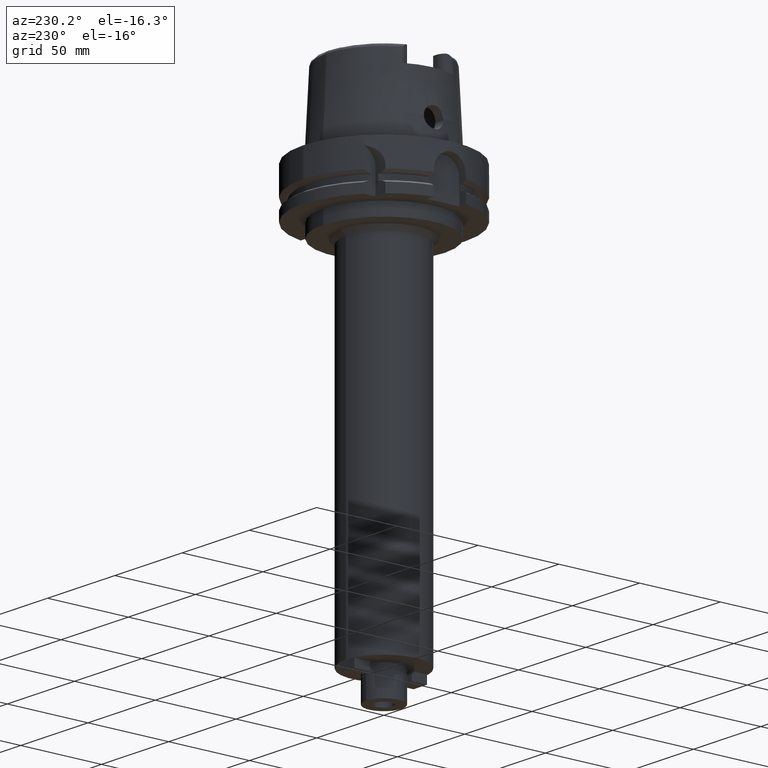
[diagram: clean part render]
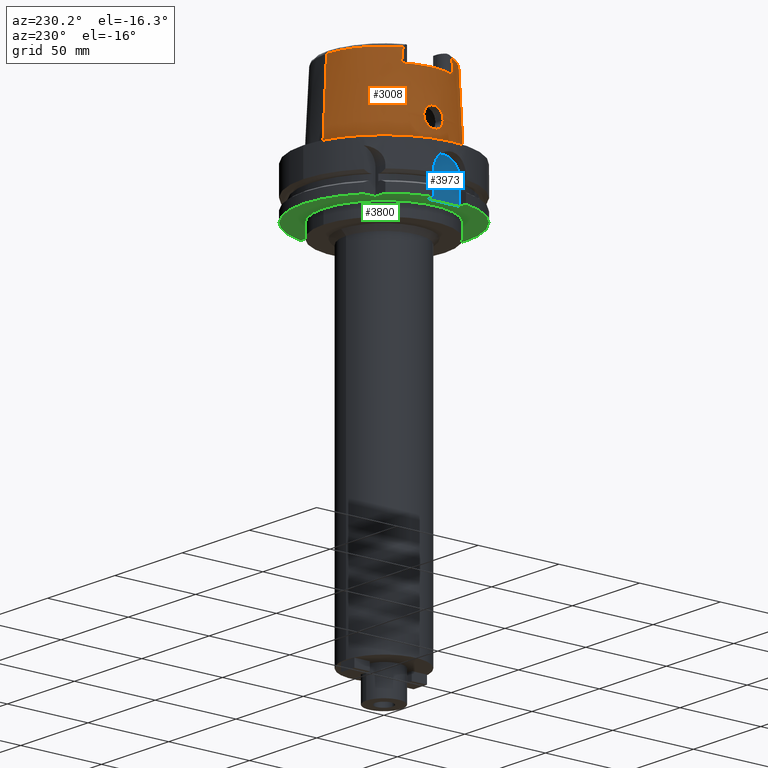
[diagram: same view with three faces highlighted in distinct colors, each labeled with its STEP entity id]
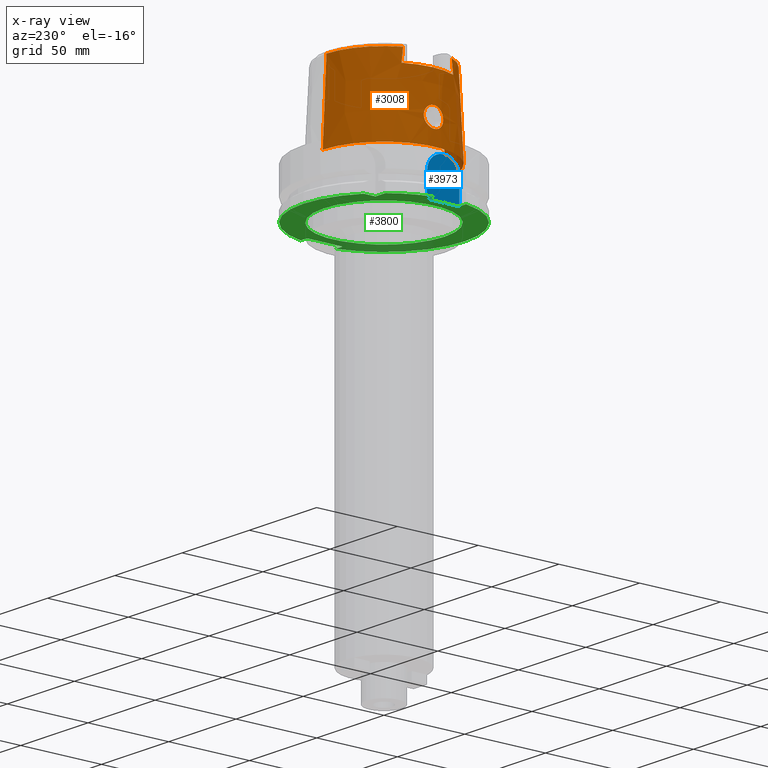
[diagram: x-ray of the same camera — body ghosted, the three highlighted faces saturated]
A machine part, auxiliary view with three faces highlighted in distinct colors.
The next image is the same camera in x-ray (body ghosted, the three faces saturated) — at least one of them is partly hidden behind the body in this view.
Their STEP definitions:

[orange] entity #3008 — the highlighted conical surface has half-angle 2.862 deg.
#130=CARTESIAN_POINT('',(0.E0,0.E0,4.E1));
#131=DIRECTION('',(0.E0,0.E0,-1.E0));
#132=DIRECTION('',(-8.958345712660E-1,-4.443876921391E-1,0.E0));
#133=AXIS2_PLACEMENT_3D('',#130,#131,#132);
#221=CARTESIAN_POINT('',(-3.224999491821E1,-1.506448477231E1,4.809973292968E1));
#279=CARTESIAN_POINT('',(0.E0,0.E0,4.809987853799E1));
#280=DIRECTION('',(0.E0,0.E0,-1.E0));
#281=DIRECTION('',(0.E0,-1.E0,0.E0));
#282=AXIS2_PLACEMENT_3D('',#279,#280,#281);
#287=CARTESIAN_POINT('',(-3.224999876012E1,-1.599794043148E1,4.E1));
#288=CARTESIAN_POINT('',(-3.224999876012E1,-1.589618560063E1,4.090434232027E1));
#289=CARTESIAN_POINT('',(-3.224999990104E1,-1.569149929716E1,4.271014755209E1));
#290=CARTESIAN_POINT('',(-3.225000220619E1,-1.538028253638E1,4.541006277038E1));
#291=CARTESIAN_POINT('',(-3.224999491821E1,-1.517027183279E1,4.720433955441E1));
#292=CARTESIAN_POINT('',(-3.224999491821E1,-1.506448477231E1,4.809973292968E1));
#297=DIRECTION('',(5.154182075151E-5,-4.993927430816E-2,-9.987522546783E-1));
#298=VECTOR('',#297,4.815996991514E1);
#299=CARTESIAN_POINT('',(-2.482252536761E-3,-3.559494263425E1,
4.809987853799E1));
#300=LINE('',#299,#298);
#304=CARTESIAN_POINT('',(-3.225000136841E1,1.506443230287E1,4.809991904347E1));
#305=CARTESIAN_POINT('',(-3.225000136841E1,1.517024627845E1,4.720430031858E1));
#306=CARTESIAN_POINT('',(-3.225000007421E1,1.538032524147E1,4.541024579911E1));
#307=CARTESIAN_POINT('',(-3.224999768767E1,1.569154926756E1,4.271027468057E1));
#308=CARTESIAN_POINT('',(-3.225000534596E1,1.589614940559E1,4.090439636549E1));
#309=CARTESIAN_POINT('',(-3.225000534596E1,1.599791057085E1,4.E1));
#314=CARTESIAN_POINT('',(-3.755000165825E1,1.321481209883E-13,9.E0));
#315=CARTESIAN_POINT('',(-3.755000165825E1,-5.654487342614E-1,9.E0));
#316=CARTESIAN_POINT('',(-3.751562823624E1,-1.697943630733E0,9.161548940207E0));
#317=CARTESIAN_POINT('',(-3.737437792059E1,-3.259546781769E0,9.865994768746E0));
#318=CARTESIAN_POINT('',(-3.717533399984E1,-4.578954983248E0,1.099475074159E1));
#319=CARTESIAN_POINT('',(-3.696817813011E1,-5.528506794425E0,1.246154239095E1));
#320=CARTESIAN_POINT('',(-3.680436324218E1,-6.020555060554E0,1.413162207672E1));
#321=CARTESIAN_POINT('',(-3.671644447447E1,-6.019866649407E0,1.586796370540E1));
#322=CARTESIAN_POINT('',(-3.671134532802E1,-5.533170496283E0,1.752249782685E1));
#323=CARTESIAN_POINT('',(-3.676971692384E1,-4.605878891985E0,1.897139279579E1));
#324=CARTESIAN_POINT('',(-3.685672560430E1,-3.299260404877E0,2.011029364715E1));
#325=CARTESIAN_POINT('',(-3.693088377027E1,-1.718569898044E0,2.083493519334E1));
#326=CARTESIAN_POINT('',(-3.694998175923E1,-5.728865299834E-1,2.1E1));
#327=CARTESIAN_POINT('',(-3.694998175923E1,0.E0,2.1E1));
#332=CARTESIAN_POINT('',(-3.694998175923E1,0.E0,2.1E1));
#333=CARTESIAN_POINT('',(-3.694998175923E1,5.707538086461E-1,2.1E1));
#334=CARTESIAN_POINT('',(-3.693100848820E1,1.713508487684E0,2.083593861735E1));
#335=CARTESIAN_POINT('',(-3.685716113495E1,3.292166376698E0,2.011502072833E1));
#336=CARTESIAN_POINT('',(-3.676972803472E1,4.605691121875E0,1.897315607968E1));
#337=CARTESIAN_POINT('',(-3.671115169354E1,5.536619608378E0,1.751581126449E1));
#338=CARTESIAN_POINT('',(-3.671671430564E1,6.019366375574E0,1.586415028589E1));
#339=CARTESIAN_POINT('',(-3.680372265240E1,6.020392307917E0,1.414461984744E1));
#340=CARTESIAN_POINT('',(-3.696460411820E1,5.541050482922E0,1.249290317085E1));
#341=CARTESIAN_POINT('',(-3.717024306074E1,4.606442314384E0,1.102617945107E1));
#342=CARTESIAN_POINT('',(-3.737152830841E1,3.285997454425E0,9.880390270897E0));
#343=CARTESIAN_POINT('',(-3.751561538674E1,1.703865606315E0,9.161496855172E0));
#344=CARTESIAN_POINT('',(-3.755000165825E1,5.665021642015E-1,9.E0));
#345=CARTESIAN_POINT('',(-3.755000165825E1,1.321481209883E-13,9.E0));
#360=DIRECTION('',(-5.154182075159E-5,4.993927430816E-2,-9.987522546783E-1));
#361=VECTOR('',#360,4.815996991514E1);
#362=CARTESIAN_POINT('',(2.482252536765E-3,3.559494263425E1,4.809987853799E1));
#363=LINE('',#362,#361);
#2061=CARTESIAN_POINT('',(0.E0,0.E0,1.136868377216E-12));
#2062=DIRECTION('',(0.E0,0.E0,1.E0));
#2063=DIRECTION('',(0.E0,1.E0,0.E0));
#2064=AXIS2_PLACEMENT_3D('',#2061,#2062,#2063);
#2390=CARTESIAN_POINT('',(-3.225000136841E1,1.506443230287E1,4.809991904347E1));
#2395=CARTESIAN_POINT('',(0.E0,0.E0,4.809987853799E1));
#2396=DIRECTION('',(0.E0,0.E0,-1.E0));
#2397=DIRECTION('',(-9.060276961631E-1,4.232183996300E-1,0.E0));
#2398=AXIS2_PLACEMENT_3D('',#2395,#2396,#2397);
#2482=CARTESIAN_POINT('',(-3.224999876012E1,-1.599794043148E1,4.E1));
#2483=VERTEX_POINT('',#2482);
#2484=CARTESIAN_POINT('',(-3.224999999999E1,1.599793480981E1,4.E1));
#2485=VERTEX_POINT('',#2484);
#2487=VERTEX_POINT('',#2390);
#2488=CARTESIAN_POINT('',(0.E0,3.559494289391E1,4.809987853799E1));
#2489=VERTEX_POINT('',#2488);
#2493=VERTEX_POINT('',#221);
#2496=CARTESIAN_POINT('',(1.065814103640E-14,-3.559494289391E1,
4.809987853799E1));
#2497=VERTEX_POINT('',#2496);
#2498=CARTESIAN_POINT('',(0.E0,-3.800001658252E1,7.602807272633E-13));
#2499=VERTEX_POINT('',#2498);
#2500=CARTESIAN_POINT('',(0.E0,3.800001658252E1,1.136868377216E-12));
#2501=VERTEX_POINT('',#2500);
#2502=VERTEX_POINT('',#314);
#2503=VERTEX_POINT('',#327);
#2982=CARTESIAN_POINT('',(0.E0,0.E0,2.404993926900E1));
#2983=DIRECTION('',(0.E0,0.E0,-1.E0));
#2984=DIRECTION('',(0.E0,-1.E0,0.E0));
#2985=AXIS2_PLACEMENT_3D('',#2982,#2983,#2984);
#2986=CONICAL_SURFACE('',#2985,3.679747973821E1,2.8625E0);
#2987=ORIENTED_EDGE('',*,*,#2891,.F.);
#2988=ORIENTED_EDGE('',*,*,#2974,.T.);
#2989=ORIENTED_EDGE('',*,*,#2964,.F.);
#2991=ORIENTED_EDGE('',*,*,#2990,.T.);
#2993=ORIENTED_EDGE('',*,*,#2992,.F.);
#2995=ORIENTED_EDGE('',*,*,#2994,.F.);
#2997=ORIENTED_EDGE('',*,*,#2996,.F.);
#2999=ORIENTED_EDGE('',*,*,#2998,.T.);
#3000=EDGE_LOOP('',(#2987,#2988,#2989,#2991,#2993,#2995,#2997,#2999));
#3001=FACE_OUTER_BOUND('',#3000,.F.);
#3003=ORIENTED_EDGE('',*,*,#3002,.T.);
#3005=ORIENTED_EDGE('',*,*,#3004,.T.);
#3006=EDGE_LOOP('',(#3003,#3005));
#3007=FACE_BOUND('',#3006,.F.);
#134=CIRCLE('',#133,3.599995025244E1);
#283=CIRCLE('',#282,3.559494289391E1);
#293=B_SPLINE_CURVE_WITH_KNOTS('',3,(#287,#288,#289,#290,#291,#292),
.UNSPECIFIED.,.F.,.F.,(4,1,1,4),(0.E0,3.333333333333E-1,6.666666666667E-1,1.E0),
.UNSPECIFIED.);
#310=B_SPLINE_CURVE_WITH_KNOTS('',3,(#304,#305,#306,#307,#308,#309),
.UNSPECIFIED.,.F.,.F.,(4,1,1,4),(0.E0,3.333333333333E-1,6.666666666667E-1,1.E0),
.UNSPECIFIED.);
#328=B_SPLINE_CURVE_WITH_KNOTS('',3,(#314,#315,#316,#317,#318,#319,#320,#321,
#322,#323,#324,#325,#326,#327),.UNSPECIFIED.,.F.,.F.,(4,1,1,1,1,1,1,1,1,1,1,4),(
0.E0,9.090909090909E-2,1.818181818182E-1,2.727272727273E-1,3.636363636364E-1,
4.545454545455E-1,5.454545454545E-1,6.363636363636E-1,7.272727272727E-1,
8.181818181818E-1,9.090909090909E-1,1.E0),.UNSPECIFIED.);
#346=B_SPLINE_CURVE_WITH_KNOTS('',3,(#332,#333,#334,#335,#336,#337,#338,#339,
#340,#341,#342,#343,#344,#345),.UNSPECIFIED.,.F.,.F.,(4,1,1,1,1,1,1,1,1,1,1,4),(
0.E0,9.090909090909E-2,1.818181818182E-1,2.727272727273E-1,3.636363636364E-1,
4.545454545455E-1,5.454545454545E-1,6.363636363636E-1,7.272727272727E-1,
8.181818181818E-1,9.090909090909E-1,1.E0),.UNSPECIFIED.);
#2065=CIRCLE('',#2064,3.800001658252E1);
#2399=CIRCLE('',#2398,3.559494289391E1);
#2891=EDGE_CURVE('',#2483,#2485,#134,.T.);
#2964=EDGE_CURVE('',#2497,#2493,#283,.T.);
#2974=EDGE_CURVE('',#2483,#2493,#293,.T.);
#2990=EDGE_CURVE('',#2497,#2499,#300,.T.);
#2992=EDGE_CURVE('',#2501,#2499,#2065,.T.);
#2994=EDGE_CURVE('',#2489,#2501,#363,.T.);
#2996=EDGE_CURVE('',#2487,#2489,#2399,.T.);
#2998=EDGE_CURVE('',#2487,#2485,#310,.T.);
#3002=EDGE_CURVE('',#2502,#2503,#328,.T.);
#3004=EDGE_CURVE('',#2503,#2502,#346,.T.);
#3008=ADVANCED_FACE('',(#3001,#3007),#2986,.T.);

[blue] entity #3973 — the highlighted planar face has unit normal (1, 0, 0).
#1477=DIRECTION('',(0.E0,0.E0,1.E0));
#1478=VECTOR('',#1477,1.4E1);
#1479=CARTESIAN_POINT('',(-4.4E1,-1.E1,-2.9E1));
#1480=LINE('',#1479,#1478);
#1491=DIRECTION('',(0.E0,1.E0,0.E0));
#1492=VECTOR('',#1491,2.E1);
#1493=CARTESIAN_POINT('',(-4.4E1,-1.E1,-2.9E1));
#1494=LINE('',#1493,#1492);
#1498=CARTESIAN_POINT('',(-4.4E1,0.E0,-1.5E1));
#1499=DIRECTION('',(1.E0,0.E0,0.E0));
#1500=DIRECTION('',(0.E0,1.E0,0.E0));
#1501=AXIS2_PLACEMENT_3D('',#1498,#1499,#1500);
#1506=CARTESIAN_POINT('',(-4.4E1,0.E0,-1.5E1));
#1507=DIRECTION('',(1.E0,0.E0,0.E0));
#1508=DIRECTION('',(0.E0,0.E0,1.E0));
#1509=AXIS2_PLACEMENT_3D('',#1506,#1507,#1508);
#1528=DIRECTION('',(0.E0,0.E0,-1.E0));
#1529=VECTOR('',#1528,1.4E1);
#1530=CARTESIAN_POINT('',(-4.4E1,1.E1,-1.5E1));
#1531=LINE('',#1530,#1529);
#2648=CARTESIAN_POINT('',(-4.4E1,1.E1,-2.9E1));
#2649=VERTEX_POINT('',#2648);
#2650=CARTESIAN_POINT('',(-4.4E1,-1.E1,-2.9E1));
#2651=VERTEX_POINT('',#2650);
#2694=CARTESIAN_POINT('',(-4.4E1,-1.E1,-1.5E1));
#2695=VERTEX_POINT('',#2694);
#2707=CARTESIAN_POINT('',(-4.4E1,1.E1,-1.5E1));
#2708=VERTEX_POINT('',#2707);
#2709=CARTESIAN_POINT('',(-4.4E1,0.E0,-5.E0));
#2710=VERTEX_POINT('',#2709);
#3958=CARTESIAN_POINT('',(-4.4E1,0.E0,0.E0));
#3959=DIRECTION('',(1.E0,0.E0,0.E0));
#3960=DIRECTION('',(0.E0,0.E0,1.E0));
#3961=AXIS2_PLACEMENT_3D('',#3958,#3959,#3960);
#3962=PLANE('',#3961);
#3963=ORIENTED_EDGE('',*,*,#3776,.T.);
#3965=ORIENTED_EDGE('',*,*,#3964,.F.);
#3967=ORIENTED_EDGE('',*,*,#3966,.T.);
#3969=ORIENTED_EDGE('',*,*,#3968,.T.);
#3970=ORIENTED_EDGE('',*,*,#3938,.F.);
#3971=EDGE_LOOP('',(#3963,#3965,#3967,#3969,#3970));
#3972=FACE_OUTER_BOUND('',#3971,.F.);
#1502=CIRCLE('',#1501,1.E1);
#1510=CIRCLE('',#1509,1.E1);
#3776=EDGE_CURVE('',#2651,#2649,#1494,.T.);
#3938=EDGE_CURVE('',#2651,#2695,#1480,.T.);
#3964=EDGE_CURVE('',#2708,#2649,#1531,.T.);
#3966=EDGE_CURVE('',#2708,#2710,#1502,.T.);
#3968=EDGE_CURVE('',#2710,#2695,#1510,.T.);
#3973=ADVANCED_FACE('',(#3972),#3962,.F.);

[green] entity #3800 — the highlighted planar face has unit normal (0, 0, 1).
#1275=DIRECTION('',(-1.E0,-4.798503851106E-14,0.E0));
#1276=VECTOR('',#1275,7.329756630709E0);
#1277=CARTESIAN_POINT('',(-3.15E1,3.15E1,-2.9E1));
#1278=LINE('',#1277,#1276);
#1282=CARTESIAN_POINT('',(0.E0,0.E0,-2.9E1));
#1283=DIRECTION('',(0.E0,0.E0,1.E0));
#1284=DIRECTION('',(-7.765951326142E-1,6.3E-1,0.E0));
#1285=AXIS2_PLACEMENT_3D('',#1282,#1283,#1284);
#1290=DIRECTION('',(-1.E0,-4.627973610177E-14,0.E0));
#1291=VECTOR('',#1290,4.989794855662E0);
#1292=CARTESIAN_POINT('',(-4.4E1,-1.E1,-2.9E1));
#1293=LINE('',#1292,#1291);
#1297=CARTESIAN_POINT('',(0.E0,0.E0,-2.9E1));
#1298=DIRECTION('',(0.E0,0.E0,1.E0));
#1299=DIRECTION('',(-9.797958971133E-1,-2.E-1,0.E0));
#1300=AXIS2_PLACEMENT_3D('',#1297,#1298,#1299);
#1305=CARTESIAN_POINT('',(0.E0,0.E0,-2.9E1));
#1306=DIRECTION('',(0.E0,0.E0,1.E0));
#1307=DIRECTION('',(0.E0,-1.E0,0.E0));
#1308=AXIS2_PLACEMENT_3D('',#1305,#1306,#1307);
#1313=DIRECTION('',(1.E0,-1.785659532940E-14,0.E0));
#1314=VECTOR('',#1313,4.774993593029E0);
#1315=CARTESIAN_POINT('',(4.4E1,1.1E1,-2.9E1));
#1316=LINE('',#1315,#1314);
#1320=CARTESIAN_POINT('',(0.E0,0.E0,-2.9E1));
#1321=DIRECTION('',(0.E0,0.E0,1.E0));
#1322=DIRECTION('',(9.754998718606E-1,2.2E-1,0.E0));
#1323=AXIS2_PLACEMENT_3D('',#1320,#1321,#1322);
#1328=CARTESIAN_POINT('',(0.E0,0.E0,-2.9E1));
#1329=DIRECTION('',(0.E0,0.E0,1.E0));
#1330=DIRECTION('',(0.E0,1.E0,0.E0));
#1331=AXIS2_PLACEMENT_3D('',#1328,#1329,#1330);
#1336=CARTESIAN_POINT('',(0.E0,0.E0,-2.9E1));
#1337=DIRECTION('',(0.E0,0.E0,-1.E0));
#1338=DIRECTION('',(0.E0,-1.E0,0.E0));
#1339=AXIS2_PLACEMENT_3D('',#1336,#1337,#1338);
#1344=CARTESIAN_POINT('',(0.E0,0.E0,-2.9E1));
#1345=DIRECTION('',(0.E0,0.E0,-1.E0));
#1346=DIRECTION('',(0.E0,1.E0,0.E0));
#1347=AXIS2_PLACEMENT_3D('',#1344,#1345,#1346);
#1352=DIRECTION('',(4.798503851106E-14,1.E0,0.E0));
#1353=VECTOR('',#1352,7.329756630709E0);
#1354=CARTESIAN_POINT('',(-3.15E1,3.15E1,-2.9E1));
#1355=LINE('',#1354,#1353);
#1405=DIRECTION('',(0.E0,-1.E0,0.E0));
#1406=VECTOR('',#1405,2.2E1);
#1407=CARTESIAN_POINT('',(4.4E1,1.1E1,-2.9E1));
#1408=LINE('',#1407,#1406);
#1449=DIRECTION('',(1.E0,1.711257052401E-14,0.E0));
#1450=VECTOR('',#1449,4.774993593029E0);
#1451=CARTESIAN_POINT('',(4.4E1,-1.1E1,-2.9E1));
#1452=LINE('',#1451,#1450);
#1491=DIRECTION('',(0.E0,1.E0,0.E0));
#1492=VECTOR('',#1491,2.E1);
#1493=CARTESIAN_POINT('',(-4.4E1,-1.E1,-2.9E1));
#1494=LINE('',#1493,#1492);
#1514=DIRECTION('',(-1.E0,4.627973610177E-14,0.E0));
#1515=VECTOR('',#1514,4.989794855662E0);
#1516=CARTESIAN_POINT('',(-4.4E1,1.E1,-2.9E1));
#1517=LINE('',#1516,#1515);
#2636=CARTESIAN_POINT('',(0.E0,3.75E1,-2.9E1));
#2637=VERTEX_POINT('',#2636);
#2638=CARTESIAN_POINT('',(0.E0,-3.75E1,-2.9E1));
#2639=VERTEX_POINT('',#2638);
#2640=CARTESIAN_POINT('',(-3.15E1,3.15E1,-2.9E1));
#2641=CARTESIAN_POINT('',(-3.15E1,3.882975663071E1,-2.9E1));
#2642=VERTEX_POINT('',#2640);
#2643=VERTEX_POINT('',#2641);
#2644=CARTESIAN_POINT('',(-3.882975663071E1,3.15E1,-2.9E1));
#2645=VERTEX_POINT('',#2644);
#2646=CARTESIAN_POINT('',(-4.898979485566E1,1.E1,-2.9E1));
#2647=VERTEX_POINT('',#2646);
#2648=CARTESIAN_POINT('',(-4.4E1,1.E1,-2.9E1));
#2649=VERTEX_POINT('',#2648);
#2650=CARTESIAN_POINT('',(-4.4E1,-1.E1,-2.9E1));
#2651=VERTEX_POINT('',#2650);
#2652=CARTESIAN_POINT('',(-4.898979485566E1,-1.E1,-2.9E1));
#2653=VERTEX_POINT('',#2652);
#2654=CARTESIAN_POINT('',(-6.297594337375E-14,-5.E1,-2.9E1));
#2655=CARTESIAN_POINT('',(4.877499359303E1,-1.1E1,-2.9E1));
#2656=VERTEX_POINT('',#2654);
#2657=VERTEX_POINT('',#2655);
#2658=CARTESIAN_POINT('',(4.4E1,-1.1E1,-2.9E1));
#2659=VERTEX_POINT('',#2658);
#2660=CARTESIAN_POINT('',(4.4E1,1.1E1,-2.9E1));
#2661=VERTEX_POINT('',#2660);
#2662=CARTESIAN_POINT('',(4.877499359303E1,1.1E1,-2.9E1));
#2663=VERTEX_POINT('',#2662);
#2664=CARTESIAN_POINT('',(-5.244699202747E-14,5.E1,-2.9E1));
#2665=VERTEX_POINT('',#2664);
#3763=CARTESIAN_POINT('',(0.E0,0.E0,-2.9E1));
#3764=DIRECTION('',(0.E0,0.E0,1.E0));
#3765=DIRECTION('',(0.E0,1.E0,0.E0));
#3766=AXIS2_PLACEMENT_3D('',#3763,#3764,#3765);
#3767=PLANE('',#3766);
#3769=ORIENTED_EDGE('',*,*,#3768,.F.);
#3771=ORIENTED_EDGE('',*,*,#3770,.T.);
#3773=ORIENTED_EDGE('',*,*,#3772,.T.);
#3775=ORIENTED_EDGE('',*,*,#3774,.F.);
#3777=ORIENTED_EDGE('',*,*,#3776,.F.);
#3779=ORIENTED_EDGE('',*,*,#3778,.T.);
#3781=ORIENTED_EDGE('',*,*,#3780,.T.);
#3783=ORIENTED_EDGE('',*,*,#3782,.T.);
#3785=ORIENTED_EDGE('',*,*,#3784,.F.);
#3787=ORIENTED_EDGE('',*,*,#3786,.F.);
#3789=ORIENTED_EDGE('',*,*,#3788,.T.);
#3791=ORIENTED_EDGE('',*,*,#3790,.T.);
#3793=ORIENTED_EDGE('',*,*,#3792,.T.);
#3794=EDGE_LOOP('',(#3769,#3771,#3773,#3775,#3777,#3779,#3781,#3783,#3785,#3787,
#3789,#3791,#3793));
#3795=FACE_OUTER_BOUND('',#3794,.F.);
#3796=ORIENTED_EDGE('',*,*,#3756,.T.);
#3797=ORIENTED_EDGE('',*,*,#3745,.T.);
#3798=EDGE_LOOP('',(#3796,#3797));
#3799=FACE_BOUND('',#3798,.F.);
#1286=CIRCLE('',#1285,5.E1);
#1301=CIRCLE('',#1300,5.E1);
#1309=CIRCLE('',#1308,5.E1);
#1324=CIRCLE('',#1323,5.E1);
#1332=CIRCLE('',#1331,5.E1);
#1340=CIRCLE('',#1339,3.75E1);
#1348=CIRCLE('',#1347,3.75E1);
#3745=EDGE_CURVE('',#2637,#2639,#1348,.T.);
#3756=EDGE_CURVE('',#2639,#2637,#1340,.T.);
#3768=EDGE_CURVE('',#2642,#2643,#1355,.T.);
#3770=EDGE_CURVE('',#2642,#2645,#1278,.T.);
#3772=EDGE_CURVE('',#2645,#2647,#1286,.T.);
#3774=EDGE_CURVE('',#2649,#2647,#1517,.T.);
#3776=EDGE_CURVE('',#2651,#2649,#1494,.T.);
#3778=EDGE_CURVE('',#2651,#2653,#1293,.T.);
#3780=EDGE_CURVE('',#2653,#2656,#1301,.T.);
#3782=EDGE_CURVE('',#2656,#2657,#1309,.T.);
#3784=EDGE_CURVE('',#2659,#2657,#1452,.T.);
#3786=EDGE_CURVE('',#2661,#2659,#1408,.T.);
#3788=EDGE_CURVE('',#2661,#2663,#1316,.T.);
#3790=EDGE_CURVE('',#2663,#2665,#1324,.T.);
#3792=EDGE_CURVE('',#2665,#2643,#1332,.T.);
#3800=ADVANCED_FACE('',(#3795,#3799),#3767,.F.);